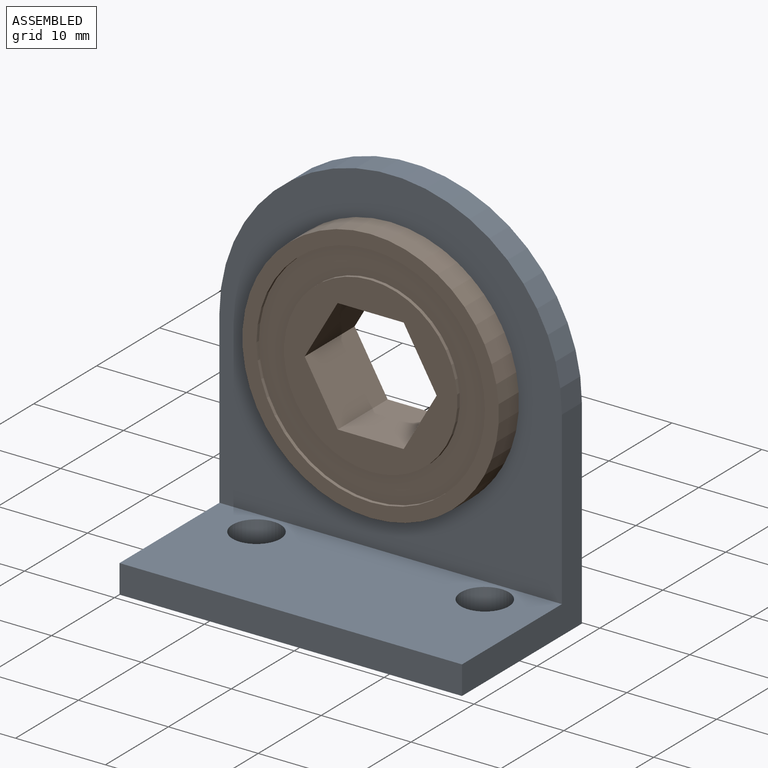
[diagram: assembled view]
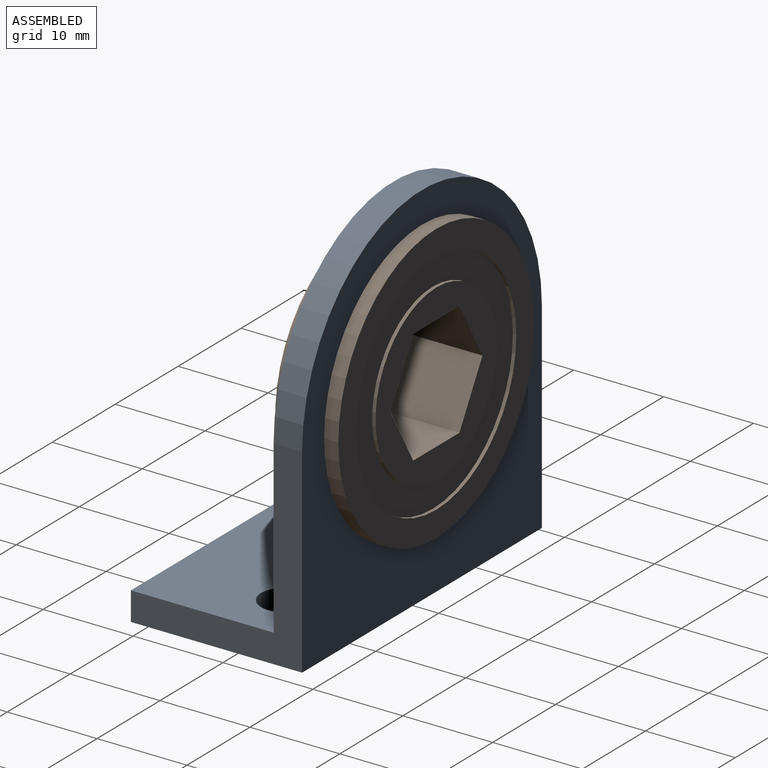
[diagram: assembled view, second angle]
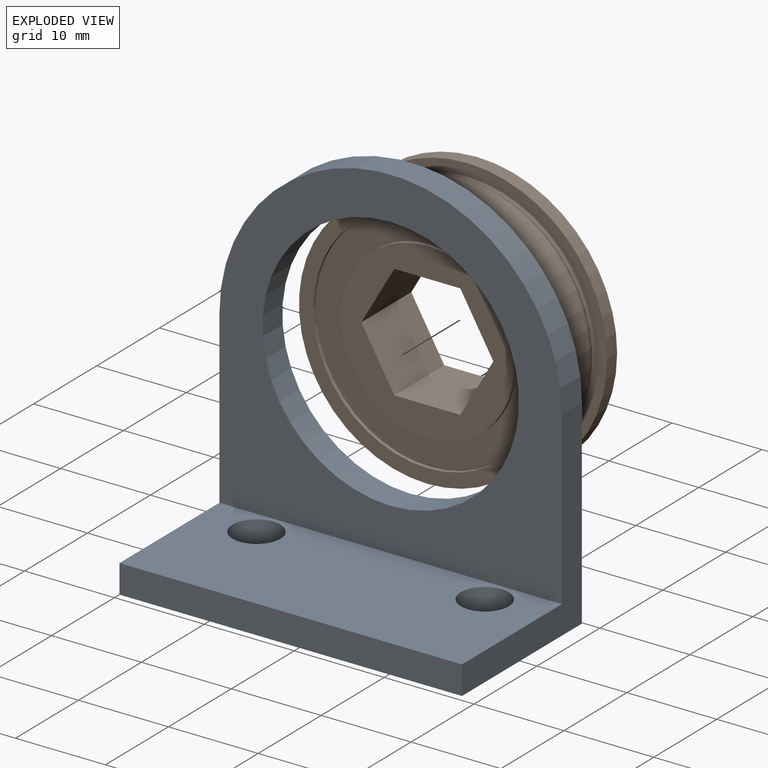
[diagram: exploded view]
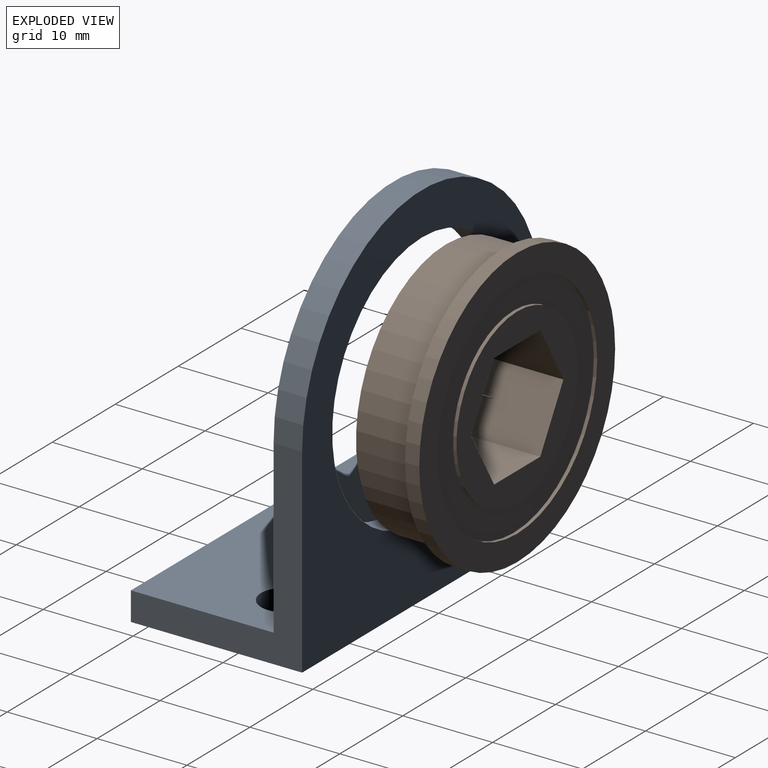
[diagram: exploded view, second angle]
ASSEMBLY  parts=2 mates=2
PART A: 11 faces, bbox 38.1x19.1x41.3 mm
  f0: plane 41.28x38.1mm, normal (0,1,0), area 776.7mm2, adj f1,f2,f5,f7,f8
  f1: plane 22.23x19.05mm, normal (1,0,0), area 121mm2, adj f0,f3,f4,f5,f6,f8
  f2: plane 22.23x19.05mm, normal (-1,0,0), area 121mm2, adj f0,f3,f4,f5,f6,f8
  f3: plane 38.1x3.18mm, normal (0,-1,0), area 121mm2, adj f1,f2,f4,f5
  f4: plane 38.1x15.88mm, normal (0,0,1), area 560.1mm2, adj f1,f2,f3,f6,f9,f10
  f5: plane 38.1x19.05mm, normal (0,0,-1), area 681.1mm2, adj f0,f1,f2,f3,f9,f10
  f6: plane 38.1x38.1mm, normal (0,-1,0), area 655.7mm2, adj f1,f2,f4,f7,f8
  f7: cylinder r=14.27mm len=28.55mm, axis (0,-1,0), area 284.8mm2, adj f0,f6
  f8: cylinder r=19.05mm len=38.1mm, axis (0,-1,0), area 190mm2, adj f0,f1,f2,f6
  f9: cylinder r=2.67mm len=5.33mm, axis (0,0,1), area 53.2mm2, adj f4,f5
  f10: cylinder r=2.67mm len=5.33mm, axis (0,0,1), area 53.2mm2, adj f4,f5
PART B: 21 faces, bbox 31.1x7.9x31.1 mm
  f0: torus R=14.27mm, axis (0,1,0), area 46.4mm2, adj f4,f10
  f1: cylinder r=9.65mm len=19.3mm, axis (0,1,0), area 23.1mm2, adj f12,f13
  f2: cylinder r=12.7mm len=25.4mm, axis (0,1,0), area 30.4mm2, adj f11,f12
  f3: cylinder r=14.27mm len=28.55mm, axis (0,1,0), area 502.3mm2, adj f4,f11
  f4: cone r=14.06mm half-angle=30deg, axis (0,-1,0), area 38.5mm2, adj f0,f3
  f5: cylinder r=15.56mm len=31.12mm, axis (0,1,0), area 155.2mm2, adj f9,f10
  f6: cylinder r=12.7mm len=25.4mm, axis (0,1,0), area 30.4mm2, adj f8,f9
  f7: cylinder r=9.65mm len=19.3mm, axis (0,1,0), area 23.1mm2, adj f8,f14
  f8: plane 25.4x25.4mm, normal (0,1,0), area 214mm2, adj f6,f7
  f9: plane 31.12x31.12mm, normal (0,1,0), area 253.7mm2, adj f5,f6
  f10: plane 31.12x31.12mm, normal (0,-1,0), area 120.2mm2, adj f0,f5
  f11: plane 28.55x28.55mm, normal (0,-1,0), area 133.5mm2, adj f2,f3
  f12: plane 25.4x25.4mm, normal (0,-1,0), area 214mm2, adj f1,f2
  f13: plane 19.3x19.3mm, normal (0,-1,0), area 152.6mm2, adj f1,f15,f16,f17,f18,f19,f20
  f14: plane 19.3x19.3mm, normal (0,1,0), area 152.6mm2, adj f7,f15,f16,f17,f18,f19,f20
  f15: plane 7.94x6.36mm, normal (-0.87,0,0.5), area 58.3mm2, adj f13,f14,f16,f20
  f16: plane 7.94x6.36mm, normal (-0.87,0,-0.5), area 58.3mm2, adj f13,f14,f15,f17
  f17: plane 7.94x7.34mm, normal (0,0,-1), area 58.3mm2, adj f13,f14,f16,f18
  f18: plane 7.94x6.36mm, normal (0.87,0,-0.5), area 58.3mm2, adj f13,f14,f17,f19
  f19: plane 7.94x6.36mm, normal (0.87,0,0.5), area 58.3mm2, adj f13,f14,f18,f20
  f20: plane 7.94x7.34mm, normal (0,0,1), area 58.3mm2, adj f13,f14,f15,f19
PLACE A t=(10.17,8.74,-16.42)mm
PLACE B t=(10.17,11.91,5.8)mm
MATE planar B.f0 <-> A.f0  axis (0,-1,0) through (10.17,18.26,5.8)mm
MATE cylindrical B.f0 <-> A.f7  axis (0,1,0) through (10.17,14.71,5.8)mm
